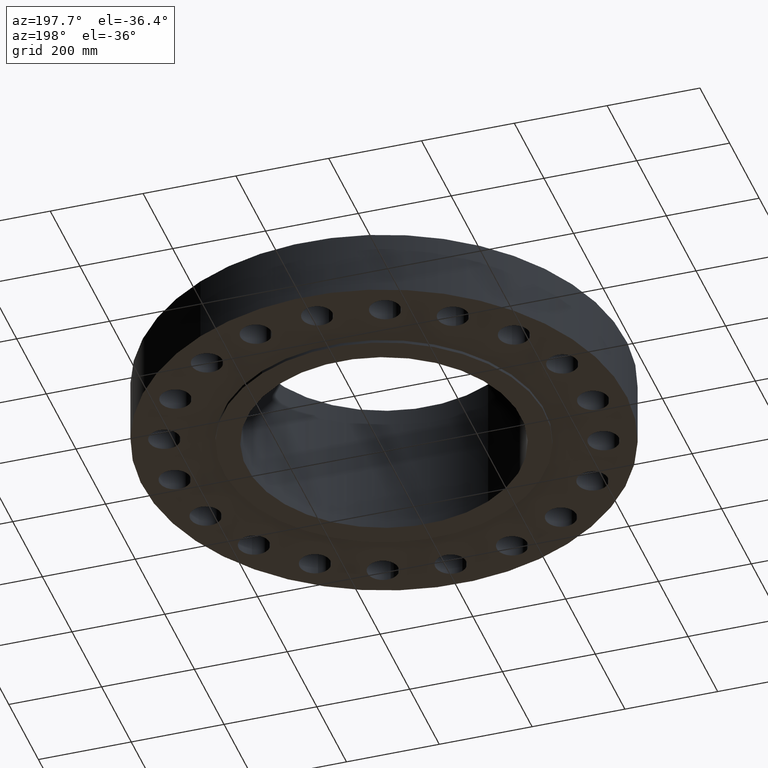
[diagram: clean part render]
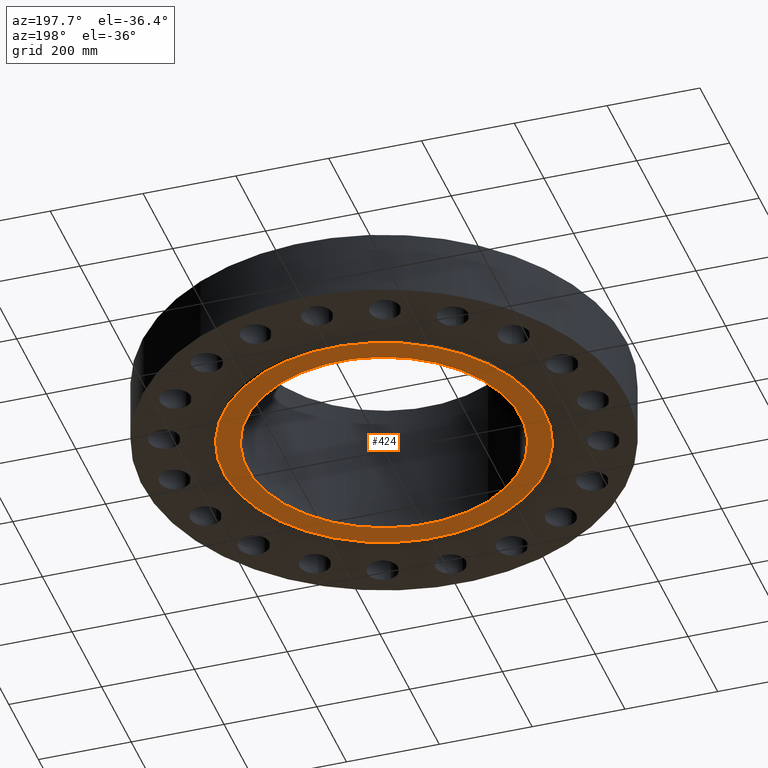
[diagram: same view with one face highlighted and labeled with its STEP entity id]
A machine part, auxiliary view. The second image highlights one B-rep face of the part: STEP entity #424.
In plain terms, the highlighted planar face has unit normal (0, 0, -1).
Its self-contained STEP definition (entity closure, byte-faithful):
#363=AXIS2_PLACEMENT_3D('Circle Axis2P3D',#361,#362,$) ;
#387=AXIS2_PLACEMENT_3D('Circle Axis2P3D',#385,#386,$) ;
#400=AXIS2_PLACEMENT_3D('Plane Axis2P3D',#397,#398,#399) ;
#404=AXIS2_PLACEMENT_3D('Circle Axis2P3D',#402,#403,$) ;
#413=AXIS2_PLACEMENT_3D('Circle Axis2P3D',#411,#412,$) ;
#358=CARTESIAN_POINT('Vertex',(5.5733218863,10.201897282,-0.250000000001)) ;
#361=CARTESIAN_POINT('Axis2P3D Location',(0.,0.,-0.250000000001)) ;
#365=CARTESIAN_POINT('Vertex',(-5.5733218863,-10.201897282,-0.250000000001)) ;
#385=CARTESIAN_POINT('Axis2P3D Location',(0.,0.,-0.250000000001)) ;
#397=CARTESIAN_POINT('Axis2P3D Location',(0.,11.625,-0.250000000001)) ;
#402=CARTESIAN_POINT('Axis2P3D Location',(0.,0.,-0.250000000001)) ;
#406=CARTESIAN_POINT('Vertex',(-6.53217296351,-11.9570624058,-0.250000000001)) ;
#408=CARTESIAN_POINT('Vertex',(6.53217296351,11.9570624058,-0.250000000001)) ;
#411=CARTESIAN_POINT('Axis2P3D Location',(0.,0.,-0.250000000001)) ;
#362=DIRECTION('Axis2P3D Direction',(0.,0.,-0.0393700787402)) ;
#386=DIRECTION('Axis2P3D Direction',(0.,0.,-0.0393700787402)) ;
#398=DIRECTION('Axis2P3D Direction',(0.,0.,-0.0393700787402)) ;
#399=DIRECTION('Axis2P3D XDirection',(0.0393700787402,0.,0.)) ;
#403=DIRECTION('Axis2P3D Direction',(0.,0.,-0.0393700787402)) ;
#412=DIRECTION('Axis2P3D Direction',(0.,0.,-0.0393700787402)) ;
#417=ORIENTED_EDGE('',*,*,#410,.T.) ;
#418=ORIENTED_EDGE('',*,*,#415,.T.) ;
#421=ORIENTED_EDGE('',*,*,#367,.F.) ;
#422=ORIENTED_EDGE('',*,*,#389,.F.) ;
#423=FACE_BOUND('',#420,.T.) ;
#424=ADVANCED_FACE('PartBody',(#419,#423),#401,.T.) ;
#364=CIRCLE('generated circle',#363,11.625) ;
#388=CIRCLE('generated circle',#387,11.625) ;
#405=CIRCLE('generated circle',#404,13.6250000001) ;
#414=CIRCLE('generated circle',#413,13.6250000001) ;
#367=EDGE_CURVE('',#359,#366,#364,.T.) ;
#389=EDGE_CURVE('',#366,#359,#388,.T.) ;
#410=EDGE_CURVE('',#407,#409,#405,.T.) ;
#415=EDGE_CURVE('',#409,#407,#414,.T.) ;
#416=EDGE_LOOP('',(#417,#418)) ;
#420=EDGE_LOOP('',(#421,#422)) ;
#419=FACE_OUTER_BOUND('',#416,.T.) ;
#401=PLANE('',#400) ;
#359=VERTEX_POINT('',#358) ;
#366=VERTEX_POINT('',#365) ;
#407=VERTEX_POINT('',#406) ;
#409=VERTEX_POINT('',#408) ;